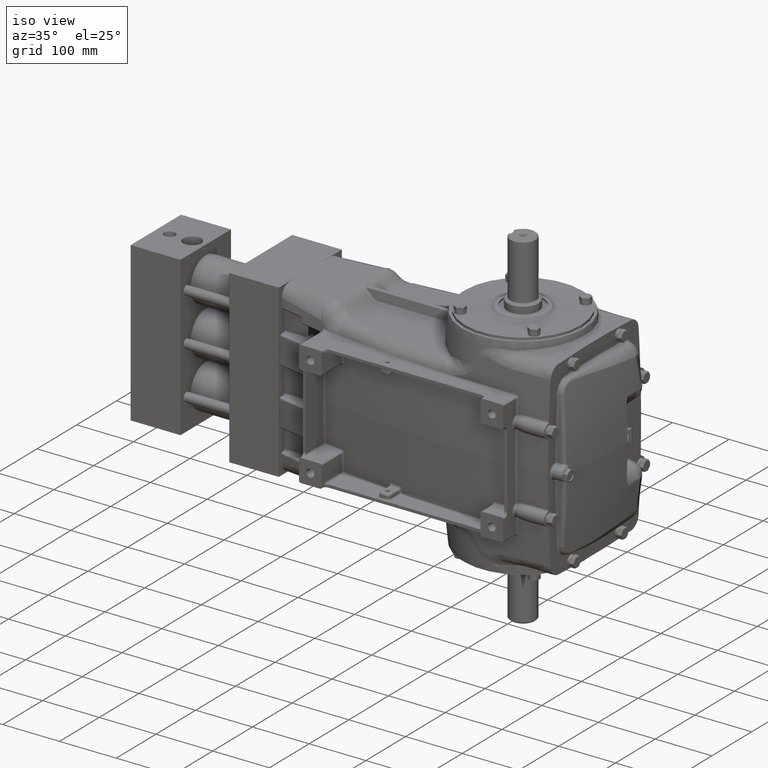
[diagram: clean part render]
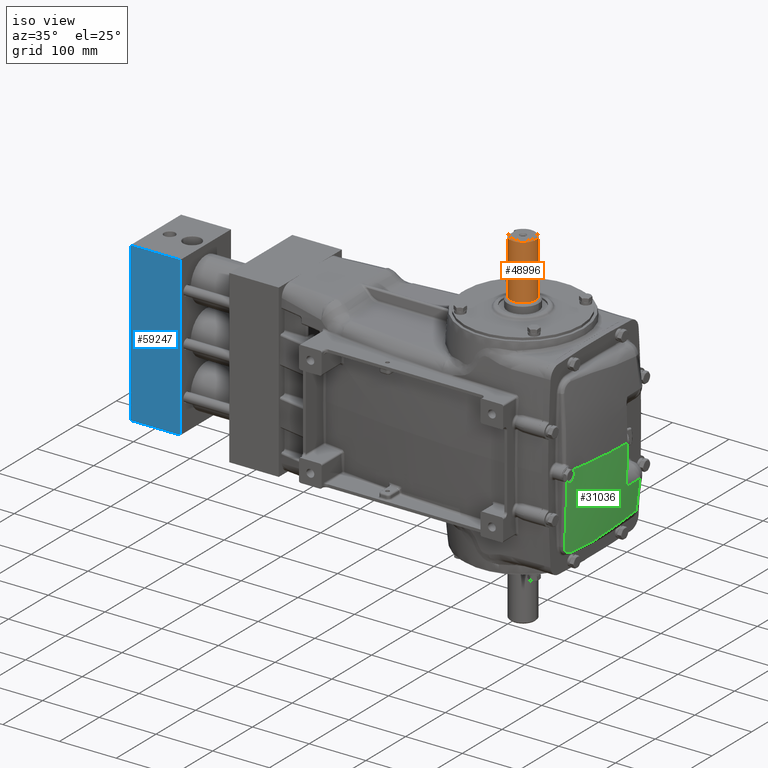
[diagram: same view with three faces highlighted in distinct colors, each labeled with its STEP entity id]
A machine part, iso view with three faces highlighted in distinct colors.
Their STEP definitions:

[orange] entity #48996 — the highlighted cylindrical surface (edge-blend (fillet) strip) has radius 22.5 mm, axis along (0, -0, -1).
#398 = VERTEX_POINT ( 'NONE', #27193 ) ;
#2600 = EDGE_LOOP ( 'NONE', ( #13059, #55700, #35697, #5553, #50763, #39683, #18586 ) ) ;
#3499 = VERTEX_POINT ( 'NONE', #30040 ) ;
#4419 = CARTESIAN_POINT ( 'NONE',  ( -7.730847990341559672, -8.015041311640707988, 8.206365731159344534 ) ) ;
#4719 = DIRECTION ( 'NONE',  ( -0.000000000000000000, 0.000000000000000000, 1.000000000000000000 ) ) ;
#5385 = CARTESIAN_POINT ( 'NONE',  ( -7.719398597081805313, -7.501432983770997431, 8.346456692913386988 ) ) ;
#5553 = ORIENTED_EDGE ( 'NONE', *, *, #24777, .T. ) ;
#5827 = B_SPLINE_CURVE_WITH_KNOTS ( 'NONE', 3,
 ( #9135, #52462, #51854, #28438, #8829, #47730, #4419, #22745, #61339, #23672, #17997, #38215 ),
 .UNSPECIFIED., .F., .F.,
 ( 4, 2, 2, 2, 2, 4 ),
 ( 0.01101464459030256776, 0.01240759447134734059, 0.01380054435239211168, 0.01519349423343688277, 0.01588996917395929867, 0.01658644411448171457 ),
 .UNSPECIFIED. ) ;
#6829 = AXIS2_PLACEMENT_3D ( 'NONE', #25063, #20304, #19675 ) ;
#8532 = VERTEX_POINT ( 'NONE', #54331 ) ;
#8552 = VERTEX_POINT ( 'NONE', #34728 ) ;
#8829 = CARTESIAN_POINT ( 'NONE',  ( -7.724050143364506127, -8.038083191710612141, 8.256258757307568530 ) ) ;
#8878 = CARTESIAN_POINT ( 'NONE',  ( -7.728332159422860670, -7.530275700836343233, 8.222339887136104863 ) ) ;
#9130 = LINE ( 'NONE', #57206, #52654 ) ;
#9135 = CARTESIAN_POINT ( 'NONE',  ( -7.719398597081805313, -8.052614086133198512, 8.346456692913386988 ) ) ;
#9183 = LINE ( 'NONE', #52817, #34813 ) ;
#9892 = B_SPLINE_CURVE_WITH_KNOTS ( 'NONE', 3,
 ( #23103, #37653, #56960, #38260, #13629, #52206, #8878, #23416, #62000, #57258, #33225, #30032, #35384, #5385 ),
 .UNSPECIFIED., .F., .F.,
 ( 4, 2, 2, 2, 2, 2, 4 ),
 ( 0.02745535854509768836, 0.02815234603431240185, 0.02884933352352711186, 0.03024330850195641046, 0.03163728348038570559, 0.03233427096960035663, 0.03303125845881500072 ),
 .UNSPECIFIED. ) ;
#13059 = ORIENTED_EDGE ( 'NONE', *, *, #41186, .T. ) ;
#13629 = CARTESIAN_POINT ( 'NONE',  ( -7.734912158620463885, -7.554275835954605611, 8.183928310501492831 ) ) ;
#17601 = CARTESIAN_POINT ( 'NONE',  ( -7.742106726044585940, -7.584150326858932090, 8.149606299212605265 ) ) ;
#17997 = CARTESIAN_POINT ( 'NONE',  ( -7.740659428135426623, -7.976384408279046490, 8.155962886990510086 ) ) ;
#18586 = ORIENTED_EDGE ( 'NONE', *, *, #29365, .T. ) ;
#18928 = CARTESIAN_POINT ( 'NONE',  ( -6.877532267147037359, -7.777023534952098416, 12.00787401574803326 ) ) ;
#19675 = DIRECTION ( 'NONE',  ( 1.000000000000000000, 0.000000000000000000, 0.000000000000000000 ) ) ;
#20304 = DIRECTION ( 'NONE',  ( -0.000000000000000000, -0.000000000000000000, -1.000000000000000000 ) ) ;
#21957 = DIRECTION ( 'NONE',  ( 0.000000000000000000, 0.000000000000000000, 1.000000000000000000 ) ) ;
#22463 = FACE_OUTER_BOUND ( 'NONE', #2600, .T. ) ;
#22481 = CIRCLE ( 'NONE', #53760, 0.8858267716535430658 ) ;
#22745 = CARTESIAN_POINT ( 'NONE',  ( -7.734914709565275714, -7.999761488238539719, 8.183914689150565636 ) ) ;
#23103 = CARTESIAN_POINT ( 'NONE',  ( -7.742106726044585940, -7.584150326858932090, 8.149606299212605265 ) ) ;
#23200 = EDGE_CURVE ( 'NONE', #28859, #3499, #5827, .T. ) ;
#23416 = CARTESIAN_POINT ( 'NONE',  ( -7.724046752083233436, -7.515952324109975713, 8.256282982849965535 ) ) ;
#23672 = CARTESIAN_POINT ( 'NONE',  ( -7.739190564947945994, -7.982620724607012441, 8.162710042704894420 ) ) ;
#23689 = DIRECTION ( 'NONE',  ( 0.000000000000000000, -0.000000000000000000, -1.000000000000000000 ) ) ;
#24777 = EDGE_CURVE ( 'NONE', #3499, #398, #22481, .T. ) ;
#25063 = CARTESIAN_POINT ( 'NONE',  ( -6.877532267147037359, -7.777023534952098416, 11.92913385826771666 ) ) ;
#27193 = CARTESIAN_POINT ( 'NONE',  ( -5.991705495493493849, -7.777023534952098416, 8.149606299212599936 ) ) ;
#28438 = CARTESIAN_POINT ( 'NONE',  ( -7.722348836362428415, -8.043460466089754846, 8.273683745780198606 ) ) ;
#28445 = CARTESIAN_POINT ( 'NONE',  ( -6.877532267147037359, -7.777023534952098416, 8.149606299212599936 ) ) ;
#28770 = VERTEX_POINT ( 'NONE', #17601 ) ;
#28859 = VERTEX_POINT ( 'NONE', #51764 ) ;
#29365 = EDGE_CURVE ( 'NONE', #8532, #8552, #9130, .T. ) ;
#30032 = CARTESIAN_POINT ( 'NONE',  ( -7.719552048329124894, -7.501900459743061411, 8.327950088391023797 ) ) ;
#30040 = CARTESIAN_POINT ( 'NONE',  ( -7.742106726044586829, -7.969896743045259413, 8.149606299212599936 ) ) ;
#32565 = DIRECTION ( 'NONE',  ( 0.000000000000000000, 0.000000000000000000, 1.000000000000000000 ) ) ;
#32707 = CARTESIAN_POINT ( 'NONE',  ( -6.877532267147037359, -7.777023534952098416, 8.149606299212599936 ) ) ;
#33225 = CARTESIAN_POINT ( 'NONE',  ( -7.720155142149333294, -7.503753139670667593, 8.309598966638480633 ) ) ;
#34728 = CARTESIAN_POINT ( 'NONE',  ( -7.719398597081805313, -7.501432983770997431, 11.92913385826771666 ) ) ;
#34813 = VECTOR ( 'NONE', #52508, 39.37007874015748143 ) ;
#35384 = CARTESIAN_POINT ( 'NONE',  ( -7.719398597081803537, -7.501432983770994767, 8.337257260382719082 ) ) ;
#35697 = ORIENTED_EDGE ( 'NONE', *, *, #23200, .T. ) ;
#37653 = CARTESIAN_POINT ( 'NONE',  ( -7.740656834787417395, -7.577651036669691642, 8.155974277074170331 ) ) ;
#38215 = CARTESIAN_POINT ( 'NONE',  ( -7.742106726044586829, -7.969896743045259413, 8.149606299212599936 ) ) ;
#38260 = CARTESIAN_POINT ( 'NONE',  ( -7.736316846996665220, -7.559735153065666680, 8.176695861145301336 ) ) ;
#38736 = AXIS2_PLACEMENT_3D ( 'NONE', #18928, #23689, #47437 ) ;
#39683 = ORIENTED_EDGE ( 'NONE', *, *, #50803, .T. ) ;
#41186 = EDGE_CURVE ( 'NONE', #8552, #44453, #51248, .T. ) ;
#41882 = DIRECTION ( 'NONE',  ( 1.000000000000000000, 0.000000000000000000, 0.000000000000000000 ) ) ;
#42369 = DIRECTION ( 'NONE',  ( 1.000000000000000000, 0.000000000000000000, 0.000000000000000000 ) ) ;
#42379 = CYLINDRICAL_SURFACE ( 'NONE', #38736, 0.8858267716535430658 ) ;
#44453 = VERTEX_POINT ( 'NONE', #54083 ) ;
#47437 = DIRECTION ( 'NONE',  ( -1.000000000000000000, 0.000000000000000000, 0.000000000000000000 ) ) ;
#47730 = CARTESIAN_POINT ( 'NONE',  ( -7.728324490853711204, -8.023797219170777595, 8.222397994098820107 ) ) ;
#48996 = ADVANCED_FACE ( 'NONE', ( #22463 ), #42379, .T. ) ;
#50694 = EDGE_CURVE ( 'NONE', #44453, #28859, #9183, .T. ) ;
#50763 = ORIENTED_EDGE ( 'NONE', *, *, #62504, .T. ) ;
#50803 = EDGE_CURVE ( 'NONE', #28770, #8532, #9892, .T. ) ;
#51248 = CIRCLE ( 'NONE', #6829, 0.8858267716535430658 ) ;
#51764 = CARTESIAN_POINT ( 'NONE',  ( -7.719398597081805313, -8.052614086133198512, 8.346456692913386988 ) ) ;
#51854 = CARTESIAN_POINT ( 'NONE',  ( -7.720018537123156221, -8.050739736147136227, 8.309524575293897541 ) ) ;
#52206 = CARTESIAN_POINT ( 'NONE',  ( -7.730847712717442199, -7.539005037638961682, 8.206368187930596747 ) ) ;
#52462 = CARTESIAN_POINT ( 'NONE',  ( -7.719398597081804425, -8.052614086133196736, 8.328135553292995041 ) ) ;
#52508 = DIRECTION ( 'NONE',  ( 0.000000000000000000, -0.000000000000000000, -1.000000000000000000 ) ) ;
#52654 = VECTOR ( 'NONE', #4719, 39.37007874015748143 ) ;
#52817 = CARTESIAN_POINT ( 'NONE',  ( -7.719398597081805313, -8.052614086133198512, 12.00787401574803326 ) ) ;
#52821 = AXIS2_PLACEMENT_3D ( 'NONE', #32707, #21957, #41882 ) ;
#53760 = AXIS2_PLACEMENT_3D ( 'NONE', #28445, #32565, #42369 ) ;
#54083 = CARTESIAN_POINT ( 'NONE',  ( -7.719398597081805313, -8.052614086133198512, 11.92913385826771666 ) ) ;
#54331 = CARTESIAN_POINT ( 'NONE',  ( -7.719398597081805313, -7.501432983770997431, 8.346456692913386988 ) ) ;
#55700 = ORIENTED_EDGE ( 'NONE', *, *, #50694, .T. ) ;
#55859 = CIRCLE ( 'NONE', #52821, 0.8858267716535430658 ) ;
#56960 = CARTESIAN_POINT ( 'NONE',  ( -7.739186324676335715, -7.571408650681484609, 8.162729992970783499 ) ) ;
#57206 = CARTESIAN_POINT ( 'NONE',  ( -7.719398597081805313, -7.501432983770997431, 12.00787401574803326 ) ) ;
#57258 = CARTESIAN_POINT ( 'NONE',  ( -7.720602517103182016, -7.505131533391538490, 8.300541971259162821 ) ) ;
#61339 = CARTESIAN_POINT ( 'NONE',  ( -7.736320059295528573, -7.994299292044047434, 8.176679541220460479 ) ) ;
#62000 = CARTESIAN_POINT ( 'NONE',  ( -7.722346969066886224, -7.510580785415615246, 8.273714035364346131 ) ) ;
#62504 = EDGE_CURVE ( 'NONE', #398, #28770, #55859, .T. ) ;

[blue] entity #59247 — the highlighted planar face has unit normal (-0, 1, 0).
#3195 = PLANE ( 'NONE',  #50388 ) ;
#3603 = CARTESIAN_POINT ( 'NONE',  ( -32.36231179470608765, -10.27702353495209842, 5.499999999999999112 ) ) ;
#6262 = VECTOR ( 'NONE', #27477, 39.37007874015748143 ) ;
#6706 = ORIENTED_EDGE ( 'NONE', *, *, #25005, .T. ) ;
#11956 = CARTESIAN_POINT ( 'NONE',  ( -28.90231179470609035, -10.27702353495209842, -5.500000000000000888 ) ) ;
#14310 = DIRECTION ( 'NONE',  ( 1.000000000000000000, 0.000000000000000000, 0.000000000000000000 ) ) ;
#17057 = VERTEX_POINT ( 'NONE', #60803 ) ;
#17665 = VERTEX_POINT ( 'NONE', #55276 ) ;
#17690 = DIRECTION ( 'NONE',  ( 1.000000000000000000, 0.000000000000000000, 0.000000000000000000 ) ) ;
#22903 = VECTOR ( 'NONE', #14310, 39.37007874015748143 ) ;
#25005 = EDGE_CURVE ( 'NONE', #17057, #60516, #55282, .T. ) ;
#27134 = DIRECTION ( 'NONE',  ( 0.000000000000000000, 0.000000000000000000, 1.000000000000000000 ) ) ;
#27477 = DIRECTION ( 'NONE',  ( 1.000000000000000000, 0.000000000000000000, 0.000000000000000000 ) ) ;
#28546 = EDGE_CURVE ( 'NONE', #38861, #17057, #46457, .T. ) ;
#28778 = CARTESIAN_POINT ( 'NONE',  ( -32.36231179470608765, -10.27702353495209842, -5.500000000000000888 ) ) ;
#32596 = VECTOR ( 'NONE', #27134, 39.37007874015748143 ) ;
#34883 = VECTOR ( 'NONE', #58188, 39.37007874015748143 ) ;
#36915 = ORIENTED_EDGE ( 'NONE', *, *, #28546, .T. ) ;
#38313 = EDGE_CURVE ( 'NONE', #38861, #17665, #48073, .T. ) ;
#38861 = VERTEX_POINT ( 'NONE', #58352 ) ;
#39670 = EDGE_LOOP ( 'NONE', ( #6706, #53650, #55955, #36915 ) ) ;
#40831 = CARTESIAN_POINT ( 'NONE',  ( -28.90231179470609035, -10.27702353495209842, 5.499999999999999112 ) ) ;
#46457 = LINE ( 'NONE', #60993, #6262 ) ;
#46498 = FACE_OUTER_BOUND ( 'NONE', #39670, .T. ) ;
#48073 = LINE ( 'NONE', #28778, #34883 ) ;
#50388 = AXIS2_PLACEMENT_3D ( 'NONE', #56604, #61033, #17690 ) ;
#53650 = ORIENTED_EDGE ( 'NONE', *, *, #55801, .F. ) ;
#55276 = CARTESIAN_POINT ( 'NONE',  ( -32.36231179470608765, -10.27702353495209842, 5.499999999999999112 ) ) ;
#55282 = LINE ( 'NONE', #11956, #32596 ) ;
#55801 = EDGE_CURVE ( 'NONE', #17665, #60516, #57319, .T. ) ;
#55955 = ORIENTED_EDGE ( 'NONE', *, *, #38313, .F. ) ;
#56604 = CARTESIAN_POINT ( 'NONE',  ( -32.36231179470608765, -10.27702353495209842, -5.500000000000000888 ) ) ;
#57319 = LINE ( 'NONE', #3603, #22903 ) ;
#58188 = DIRECTION ( 'NONE',  ( 0.000000000000000000, 0.000000000000000000, 1.000000000000000000 ) ) ;
#58352 = CARTESIAN_POINT ( 'NONE',  ( -32.36231179470608765, -10.27702353495209842, -5.500000000000000888 ) ) ;
#59247 = ADVANCED_FACE ( 'NONE', ( #46498 ), #3195, .F. ) ;
#60516 = VERTEX_POINT ( 'NONE', #40831 ) ;
#60803 = CARTESIAN_POINT ( 'NONE',  ( -28.90231179470609035, -10.27702353495209842, -5.500000000000000888 ) ) ;
#60993 = CARTESIAN_POINT ( 'NONE',  ( -32.36231179470608765, -10.27702353495209842, -5.500000000000000888 ) ) ;
#61033 = DIRECTION ( 'NONE',  ( -0.000000000000000000, 1.000000000000000000, 0.000000000000000000 ) ) ;

[green] entity #31036 — the highlighted toroidal blend (fillet) surface has major radius 300 mm and minor (blend) radius 700 mm.
#326 = VERTEX_POINT ( 'NONE', #27504 ) ;
#339 = CARTESIAN_POINT ( 'NONE',  ( -1.239549991746208280, -11.19089365471486097, -0.2297784026368260013 ) ) ;
#479 = DIRECTION ( 'NONE',  ( 1.000000000000000000, 0.000000000000000000, 0.000000000000000000 ) ) ;
#792 = CARTESIAN_POINT ( 'NONE',  ( -0.7374598438591535299, -6.194793563650641488, -3.376538103779295109E-33 ) ) ;
#872 = CARTESIAN_POINT ( 'NONE',  ( -0.8372331752602636401, -6.075934739532610429, -2.812148308104203576 ) ) ;
#968 = CARTESIAN_POINT ( 'NONE',  ( -1.553548811109386252, -11.27314002713904806, -4.807788219395104257 ) ) ;
#1194 = CARTESIAN_POINT ( 'NONE',  ( -1.313602737272024923, -9.365863670141120423, -5.334166308895315289 ) ) ;
#1374 = VERTEX_POINT ( 'NONE', #9789 ) ;
#1495 = CARTESIAN_POINT ( 'NONE',  ( -1.162758179521760082, -8.063842303444168635, -5.198477331368215992 ) ) ;
#1698 = ORIENTED_EDGE ( 'NONE', *, *, #33203, .T. ) ;
#1957 = ORIENTED_EDGE ( 'NONE', *, *, #56041, .T. ) ;
#2120 = CARTESIAN_POINT ( 'NONE',  ( -1.300013917008597364, -9.264484519502829585, -5.326574133655284093 ) ) ;
#2433 = CARTESIAN_POINT ( 'NONE',  ( -1.209764074036724812, -8.522181784061343635, -5.254347282928313767 ) ) ;
#3809 = CARTESIAN_POINT ( 'NONE',  ( -1.564478072190621738, -11.03825976031536982, -5.241086578144339647 ) ) ;
#3991 = CARTESIAN_POINT ( 'NONE',  ( -1.044320564721674449, -5.316760959051895163, -4.864105943301918700 ) ) ;
#4106 = B_SPLINE_CURVE_WITH_KNOTS ( 'NONE', 3,
 ( #9513, #38286, #58839, #28806, #15509, #48417 ),
 .UNSPECIFIED., .F., .F.,
 ( 4, 2, 4 ),
 ( 0.01236748594910167323, 0.06737170396115277349, 0.1223759219732038633 ),
 .UNSPECIFIED. ) ;
#4115 = CARTESIAN_POINT ( 'NONE',  ( -1.571242836738718340, -11.18458716852035195, -5.081512726748599107 ) ) ;
#4420 = CARTESIAN_POINT ( 'NONE',  ( -0.8372331752602636401, -6.075934739532610429, -2.812148308104203576 ) ) ;
#4900 = CARTESIAN_POINT ( 'NONE',  ( -0.7437229183762256168, -6.192758567381069668, -0.8119747735864563110 ) ) ;
#5057 = CARTESIAN_POINT ( 'NONE',  ( -1.229270595723360948, -11.14106457318714227, 3.865702057846360924E-15 ) ) ;
#5095 = B_SPLINE_CURVE_WITH_KNOTS ( 'NONE', 3,
 ( #20611, #47633, #57428, #34561, #10839, #14972, #53849, #10530, #29513, #15881 ),
 .UNSPECIFIED., .F., .F.,
 ( 4, 2, 2, 2, 4 ),
 ( 0.02146166848574502031, 0.02380266222305022980, 0.02614365596035544276, 0.02848464969766065225, 0.03082564343496586173 ),
 .UNSPECIFIED. ) ;
#5919 = CARTESIAN_POINT ( 'NONE',  ( -1.298220422752950576, -9.250960343425136401, -5.325518707966256038 ) ) ;
#6229 = CARTESIAN_POINT ( 'NONE',  ( -1.238928737523074419, -8.778489302564491226, -5.282356873758460303 ) ) ;
#6848 = CARTESIAN_POINT ( 'NONE',  ( -1.246312482781278375, -8.840454098437763975, -5.288675306705785673 ) ) ;
#7164 = CARTESIAN_POINT ( 'NONE',  ( -1.138822863054163692, -7.797248931487713364, -5.163434554022858336 ) ) ;
#7396 = CIRCLE ( 'NONE', #51812, 27.55905511811022990 ) ;
#7474 = CARTESIAN_POINT ( 'NONE',  ( -1.054595549207635985, -6.363717331195389626, -4.971155850280974953 ) ) ;
#7493 = ORIENTED_EDGE ( 'NONE', *, *, #47980, .T. ) ;
#7576 = VERTEX_POINT ( 'NONE', #43528 ) ;
#8402 = CARTESIAN_POINT ( 'NONE',  ( -1.093362904261915514, -7.186763641587701201, -5.080195478884207638 ) ) ;
#9298 = B_SPLINE_CURVE_WITH_KNOTS ( 'NONE', 3,
 ( #29773, #34521, #20271, #43391 ),
 .UNSPECIFIED., .F., .F.,
 ( 4, 4 ),
 ( 0.000000000000000000, 0.05182488106915178472 ),
 .UNSPECIFIED. ) ;
#9449 = CARTESIAN_POINT ( 'NONE',  ( -1.568321439975793874, -11.23441811615799502, -4.984472006344477180 ) ) ;
#9513 = CARTESIAN_POINT ( 'NONE',  ( -1.290659113558912940, -11.43655909769185897, -0.4877294735864423081 ) ) ;
#9789 = CARTESIAN_POINT ( 'NONE',  ( -1.056191481285859934, -4.877367484191863944, -4.840242302779922845 ) ) ;
#9927 = CARTESIAN_POINT ( 'NONE',  ( -0.8625420740671588815, -4.766474164009145476, -2.812132526087493645 ) ) ;
#10530 = CARTESIAN_POINT ( 'NONE',  ( -1.279705527520015318, -11.38423629869141251, -0.4577162347525909336 ) ) ;
#10839 = CARTESIAN_POINT ( 'NONE',  ( -1.256253033215209536, -11.27160086187627641, -0.3576042505593980958 ) ) ;
#10959 = CARTESIAN_POINT ( 'NONE',  ( -1.444658153869460726, -10.25571274051980808, -5.371031495846720460 ) ) ;
#11074 = EDGE_CURVE ( 'NONE', #59365, #38257, #4106, .T. ) ;
#11270 = CARTESIAN_POINT ( 'NONE',  ( -1.143783696655722437, -7.854750483413231343, -5.171109672741192043 ) ) ;
#11578 = CARTESIAN_POINT ( 'NONE',  ( -1.482394138368559489, -10.48608055380844384, -5.369261606014289256 ) ) ;
#11899 = CARTESIAN_POINT ( 'NONE',  ( -1.216051548401235305, -8.578968049057365874, -5.260779149100234697 ) ) ;
#12044 = B_SPLINE_CURVE_WITH_KNOTS ( 'NONE', 3,
 ( #9927, #40247, #14999, #19710 ),
 .UNSPECIFIED., .F., .F.,
 ( 4, 4 ),
 ( 0.000000000000000000, 0.03326646946209800559 ),
 .UNSPECIFIED. ) ;
#12218 = CARTESIAN_POINT ( 'NONE',  ( -1.153648331773578173, -7.965255249904779511, -5.185673076906480716 ) ) ;
#12535 = CARTESIAN_POINT ( 'NONE',  ( -1.055418966499295896, -6.390281460580708561, -4.974424776607643928 ) ) ;
#13770 = CARTESIAN_POINT ( 'NONE',  ( -1.048945088627819766, -5.089176727989618065, -4.848991911919142694 ) ) ;
#13900 = CARTESIAN_POINT ( 'NONE',  ( -1.555566810049102466, -11.27189060639147655, -4.825956977166343087 ) ) ;
#13901 = CARTESIAN_POINT ( 'NONE',  ( -0.8351223092120459990, -6.088339219926455215, -2.781892614608941550 ) ) ;
#14972 = CARTESIAN_POINT ( 'NONE',  ( -1.265000881451562753, -11.31370355546100548, -0.4017209433856092637 ) ) ;
#14999 = CARTESIAN_POINT ( 'NONE',  ( -0.8352687965442249229, -5.639263185393296851, -2.812149532266563501 ) ) ;
#15307 = CARTESIAN_POINT ( 'NONE',  ( -40.10647146010700226, -5.952271988252819668, 0.000000000000000000 ) ) ;
#15509 = CARTESIAN_POINT ( 'NONE',  ( -1.473881770483631781, -11.32246495565934730, -4.090517692144737261 ) ) ;
#15744 = CARTESIAN_POINT ( 'NONE',  ( -1.290659113558912940, -11.43655909769185897, -0.4877294735864423081 ) ) ;
#15881 = CARTESIAN_POINT ( 'NONE',  ( -1.290659113558912940, -11.43655909769185897, -0.4877294735864423081 ) ) ;
#16005 = CARTESIAN_POINT ( 'NONE',  ( -1.212875983778185063, -8.550387928906197033, -5.257555849138636717 ) ) ;
#16319 = CARTESIAN_POINT ( 'NONE',  ( -1.198577036284782960, -8.420411178038166966, -5.242719921505767822 ) ) ;
#16624 = CARTESIAN_POINT ( 'NONE',  ( -1.519731583493590277, -10.70447521817609804, -5.360178882565543645 ) ) ;
#16941 = CARTESIAN_POINT ( 'NONE',  ( -1.128150560995435647, -7.672129082949544099, -5.146668262404694438 ) ) ;
#17500 = EDGE_CURVE ( 'NONE', #26567, #33438, #25146, .T. ) ;
#17568 = CARTESIAN_POINT ( 'NONE',  ( -1.101311299772697261, -7.308139132119914727, -5.096980045203364895 ) ) ;
#17684 = CARTESIAN_POINT ( 'NONE',  ( -1.541896261536149781, -10.84561409155366540, -5.337421209621138196 ) ) ;
#18211 = CARTESIAN_POINT ( 'NONE',  ( -1.229270595723360948, -11.14106457318714227, 3.865702057846360924E-15 ) ) ;
#18295 = CARTESIAN_POINT ( 'NONE',  ( -1.539407222528651698, -10.82832736550711061, -5.342144275654240992 ) ) ;
#18296 = CARTESIAN_POINT ( 'NONE',  ( -0.8268244958986382676, -6.131954457684191340, -2.658460200148968777 ) ) ;
#18481 = CARTESIAN_POINT ( 'NONE',  ( -1.078871573567592668, -6.944082895167395186, -5.046335931002459141 ) ) ;
#18597 = CARTESIAN_POINT ( 'NONE',  ( -1.555184443548970563, -10.94694671594674062, -5.298649251694553364 ) ) ;
#18772 = EDGE_CURVE ( 'NONE', #54931, #33438, #31073, .T. ) ;
#18911 = CARTESIAN_POINT ( 'NONE',  ( -1.560801143742031494, -11.26397189553317624, -4.879996799677583930 ) ) ;
#18959 = B_SPLINE_CURVE_WITH_KNOTS ( 'NONE', 3,
 ( #16624, #11578, #10959, #30855, #54280, #34985, #45738, #1194, #59343, #50165, #2120, #21050, #30238, #31495, #5919, #49554, #50477, #59650, #6848, #6229, #20430, #40658, #11899, #16005, #25506, #44807, #21677, #39716, #21367, #2433, #25189, #16319, #36236, #59964, #1495, #12218, #54582, #11270, #35607, #35912, #55223, #7164, #40967, #26455, #60280, #16941, #44490, #17568, #8402, #52031, #18481, #31804, #47296, #27391, #12535, #7474, #41607, #32432, #41288, #51730, #37485, #26762, #56793, #22937, #3991, #13770, #46685 ),
 .UNSPECIFIED., .F., .F.,
 ( 4, 2, 2, 1, 1, 1, 1, 1, 1, 1, 2, 2, 2, 2, 1, 1, 1, 1, 1, 1, 1, 2, 2, 2, 2, 1, 1, 1, 1, 1, 1, 2, 2, 1, 2, 2, 1, 1, 1, 1, 1, 1, 1, 1, 2, 2, 2, 4 ),
 ( 0.000000000000000000, 0.1249999999993358091, 0.1874999999990037136, 0.2187499999988379018, 0.2343749999987550237, 0.2421874999987138344, 0.2460937499986932397, 0.2480468749986829702, 0.2490234374986781130, 0.2495117187486754207, 0.2497558593736743382, 0.2499999999986732280, 0.3124999999984882648, 0.3437499999983958388, 0.3593749999983497090, 0.3671874999983263388, 0.3710937499983149035, 0.3730468749983089638, 0.3740234374983059662, 0.3745117187483042454, 0.3747558593733035792, 0.3748779296858035237, 0.3749999999983034127, 0.4374999999984450216, 0.4687499999985158539, 0.4843749999985512700, 0.4921874999985687005, 0.4960937499985771937, 0.4980468749985814680, 0.4990234374985837995, 0.4995117187485850763, 0.4997558593735858534, 0.4999999999985866861, 0.5624999999987793098, 0.5937499999988755661, 0.6249999999989718225, 0.6874999999991637800, 0.7187499999992598143, 0.7343749999993077759, 0.7421874999993315347, 0.7460937499993437472, 0.7480468749993500754, 0.7490234374993532951, 0.7495117187493548494, 0.7497558593743557376, 0.7499999999993565147, 0.8749999999996781463, 1.000000000000000000 ),
 .UNSPECIFIED. ) ;
#19710 = CARTESIAN_POINT ( 'NONE',  ( -0.8372331752602636401, -6.075934739532610429, -2.812148308104203576 ) ) ;
#20271 = CARTESIAN_POINT ( 'NONE',  ( -0.9099647685575180667, -4.793707866133954276, -3.490336519798898696 ) ) ;
#20430 = CARTESIAN_POINT ( 'NONE',  ( -1.227914530523909420, -8.683621800718711370, -5.272281251762199972 ) ) ;
#20611 = CARTESIAN_POINT ( 'NONE',  ( -1.239549991746208280, -11.19089365471486097, -0.2297784026368260013 ) ) ;
#21050 = CARTESIAN_POINT ( 'NONE',  ( -1.299047918286505565, -9.257204477328892622, -5.326007232351605225 ) ) ;
#21288 = CARTESIAN_POINT ( 'NONE',  ( -0.8125850666106061437, -6.170383899094809443, -2.434261824659195828 ) ) ;
#21367 = CARTESIAN_POINT ( 'NONE',  ( -1.209820591514240373, -8.522695818365065179, -5.254405996074729579 ) ) ;
#21677 = CARTESIAN_POINT ( 'NONE',  ( -1.210103211101704268, -8.525265383865184177, -5.254699371332351987 ) ) ;
#21743 = EDGE_CURVE ( 'NONE', #62281, #45991, #31578, .T. ) ;
#22937 = CARTESIAN_POINT ( 'NONE',  ( -1.042676546646773561, -5.803401720210779935, -4.906771388503367248 ) ) ;
#23058 = CARTESIAN_POINT ( 'NONE',  ( -1.566347472860442291, -11.24660392817786025, -4.950513585213520251 ) ) ;
#23142 = EDGE_CURVE ( 'NONE', #38257, #7576, #23163, .T. ) ;
#23163 = B_SPLINE_CURVE_WITH_KNOTS ( 'NONE', 3,
 ( #32556, #13900, #56600, #18911, #56297, #23058, #9449, #42977, #32860, #4115, #42049, #27517, #61646, #47107, #52774, #3809, #46811, #37899, #18597, #62258, #47417, #17684, #18295, #48031, #61953, #37299 ),
 .UNSPECIFIED., .F., .F.,
 ( 4, 2, 2, 2, 2, 2, 2, 2, 2, 2, 2, 2, 4 ),
 ( 0.000000000000000000, 0.001393468656929963256, 0.002786937313859926511, 0.005573874627719812257, 0.006967343284649719568, 0.008360811941579627746, 0.01114774925543927583, 0.01254121791236904176, 0.01393468656929880423, 0.01672162388315833262, 0.01811509254008808467, 0.01950856119701783326, 0.02229549851087730961 ),
 .UNSPECIFIED. ) ;
#23513 = ORIENTED_EDGE ( 'NONE', *, *, #61503, .T. ) ;
#24778 = CARTESIAN_POINT ( 'NONE',  ( -0.8125850666106061437, -6.170383899094809443, -2.434261824659195828 ) ) ;
#25146 = B_SPLINE_CURVE_WITH_KNOTS ( 'NONE', 3,
 ( #4420, #13901, #32863, #47419, #18296, #33800, #57515, #52160, #42053, #62260 ),
 .UNSPECIFIED., .F., .F.,
 ( 4, 2, 2, 2, 4 ),
 ( -2.857996328438178080E-05, 0.002468332397666001422, 0.004965244758616384722, 0.007462157119566768457, 0.009959069480517151324 ),
 .UNSPECIFIED. ) ;
#25189 = CARTESIAN_POINT ( 'NONE',  ( -1.209729298983849288, -8.521865457737622052, -5.254311146328294768 ) ) ;
#25506 = CARTESIAN_POINT ( 'NONE',  ( -1.211290858886710176, -8.536045325349617130, -5.255927702950783598 ) ) ;
#26455 = CARTESIAN_POINT ( 'NONE',  ( -1.138587042066043997, -7.794486595092190662, -5.163064503765199653 ) ) ;
#26567 = VERTEX_POINT ( 'NONE', #872 ) ;
#26762 = CARTESIAN_POINT ( 'NONE',  ( -1.053812229919711907, -6.337688891666042323, -4.967966940072961357 ) ) ;
#27126 = EDGE_LOOP ( 'NONE', ( #34845, #7493, #34641, #23513, #59044, #35494, #1698, #1957, #54093, #54205 ) ) ;
#27391 = CARTESIAN_POINT ( 'NONE',  ( -1.057138411284552104, -6.443407199174843392, -4.981005914649505151 ) ) ;
#27504 = CARTESIAN_POINT ( 'NONE',  ( -0.8625420740671588815, -4.766474164009145476, -2.812132526087493645 ) ) ;
#27517 = CARTESIAN_POINT ( 'NONE',  ( -1.571065766423013654, -11.14314967961352210, -5.140980375108049394 ) ) ;
#28765 = CARTESIAN_POINT ( 'NONE',  ( -1.230999932499291960, -11.14945415337018098, -0.09848937057379755777 ) ) ;
#28806 = CARTESIAN_POINT ( 'NONE',  ( -1.412245602483326978, -11.36079691508933642, -3.371873501537796525 ) ) ;
#28918 = CARTESIAN_POINT ( 'NONE',  ( -0.7374598438591547511, -6.194793563650639712, -0.4060737577237384377 ) ) ;
#29513 = CARTESIAN_POINT ( 'NONE',  ( -1.285020267492596568, -11.40965757849815887, -0.4737448369408722160 ) ) ;
#29773 = CARTESIAN_POINT ( 'NONE',  ( -1.056191481285859934, -4.877367484191863944, -4.840242302779922845 ) ) ;
#29791 = CARTESIAN_POINT ( 'NONE',  ( -28.29544783805975783, -5.952271988252819668, 0.000000000000000000 ) ) ;
#30238 = CARTESIAN_POINT ( 'NONE',  ( -1.298565156337456061, -9.253562522471201035, -5.325722550518118936 ) ) ;
#30447 = FACE_OUTER_BOUND ( 'NONE', #27126, .T. ) ;
#30855 = CARTESIAN_POINT ( 'NONE',  ( -1.388776277567401074, -9.892099222711603801, -5.362439750434919716 ) ) ;
#31034 = DIRECTION ( 'NONE',  ( 0.000000000000000000, 0.000000000000000000, -1.000000000000000000 ) ) ;
#31036 = ADVANCED_FACE ( 'NONE', ( #30447 ), #39578, .T. ) ;
#31073 = B_SPLINE_CURVE_WITH_KNOTS ( 'NONE', 3,
 ( #792, #28918, #4900, #34281, #48526, #24778 ),
 .UNSPECIFIED., .F., .F.,
 ( 4, 2, 4 ),
 ( 1.999312279279940984E-07, 0.03093238034559044405, 0.06186456075995296067 ),
 .UNSPECIFIED. ) ;
#31495 = CARTESIAN_POINT ( 'NONE',  ( -1.298358309375178710, -9.252001270294398338, -5.325600280168608869 ) ) ;
#31578 = B_SPLINE_CURVE_WITH_KNOTS ( 'NONE', 3,
 ( #5057, #43010, #33209, #43317, #28765, #34447, #48063, #52494 ),
 .UNSPECIFIED., .F., .F.,
 ( 4, 2, 2, 4 ),
 ( 0.006022522450713312797, 0.007529121385804939809, 0.009035720320896566821, 0.01204891819107982084 ),
 .UNSPECIFIED. ) ;
#31804 = CARTESIAN_POINT ( 'NONE',  ( -1.069488742895365885, -6.762084546008986230, -5.021702686355932421 ) ) ;
#32432 = CARTESIAN_POINT ( 'NONE',  ( -1.053993868587648652, -6.343793695607145899, -4.968713628097813917 ) ) ;
#32556 = CARTESIAN_POINT ( 'NONE',  ( -1.553548811109386252, -11.27314002713904806, -4.807788219395104257 ) ) ;
#32860 = CARTESIAN_POINT ( 'NONE',  ( -1.570689666419578190, -11.20303311522727086, -5.049886546279415356 ) ) ;
#32863 = CARTESIAN_POINT ( 'NONE',  ( -0.8330347923026889534, -6.100207147449855150, -2.751387458887342152 ) ) ;
#33203 = EDGE_CURVE ( 'NONE', #7576, #1374, #18959, .T. ) ;
#33209 = CARTESIAN_POINT ( 'NONE',  ( -1.229483371388978563, -11.14209699727395986, -0.03935245566530796296 ) ) ;
#33438 = VERTEX_POINT ( 'NONE', #21288 ) ;
#33800 = CARTESIAN_POINT ( 'NONE',  ( -0.8227298756452454676, -6.148976059683232798, -2.595490492864124477 ) ) ;
#34281 = CARTESIAN_POINT ( 'NONE',  ( -0.7687638313424293157, -6.184622281546694467, -1.623431635602357925 ) ) ;
#34447 = CARTESIAN_POINT ( 'NONE',  ( -1.233579403224732474, -11.16196371783728836, -0.1563399999800972606 ) ) ;
#34521 = CARTESIAN_POINT ( 'NONE',  ( -0.9745006695503225513, -4.830719953914356601, -4.166371834084402259 ) ) ;
#34561 = CARTESIAN_POINT ( 'NONE',  ( -1.252303080461435458, -11.25254961317880031, -0.3339704265119712301 ) ) ;
#34641 = ORIENTED_EDGE ( 'NONE', *, *, #21743, .T. ) ;
#34845 = ORIENTED_EDGE ( 'NONE', *, *, #18772, .F. ) ;
#34985 = CARTESIAN_POINT ( 'NONE',  ( -1.342878500918765594, -9.577040738484017268, -5.347746349722943826 ) ) ;
#35189 = DIRECTION ( 'NONE',  ( 0.000000000000000000, -1.000000000000000000, 0.000000000000000000 ) ) ;
#35494 = ORIENTED_EDGE ( 'NONE', *, *, #23142, .T. ) ;
#35607 = CARTESIAN_POINT ( 'NONE',  ( -1.141135971373387292, -7.824203668402150313, -5.167039075899903189 ) ) ;
#35912 = CARTESIAN_POINT ( 'NONE',  ( -1.139813745887563012, -7.808826822460285477, -5.164984239179559289 ) ) ;
#36236 = CARTESIAN_POINT ( 'NONE',  ( -1.186826277978528354, -8.309107796381336897, -5.229358085738218698 ) ) ;
#37299 = CARTESIAN_POINT ( 'NONE',  ( -1.519731583493590277, -10.70447521817609804, -5.360178882565543645 ) ) ;
#37463 = CARTESIAN_POINT ( 'NONE',  ( -0.7374598438591535299, -6.194793563650641488, -3.376538103779295109E-33 ) ) ;
#37485 = CARTESIAN_POINT ( 'NONE',  ( -1.053824458244404072, -6.338101144624906702, -4.968017340805081616 ) ) ;
#37899 = CARTESIAN_POINT ( 'NONE',  ( -1.558751547647863056, -10.97861235655337175, -5.281568287909771620 ) ) ;
#38257 = VERTEX_POINT ( 'NONE', #968 ) ;
#38286 = CARTESIAN_POINT ( 'NONE',  ( -1.298719047164479390, -11.43152875567663074, -1.210477209355807826 ) ) ;
#39578 = TOROIDAL_SURFACE ( 'NONE', #51758, 11.81102362204724265, 27.55905511811023700 ) ;
#39716 = CARTESIAN_POINT ( 'NONE',  ( -1.209905370849988726, -8.523466811173589619, -5.254494047360801723 ) ) ;
#40247 = CARTESIAN_POINT ( 'NONE',  ( -0.8437043333573092108, -5.202776313339746217, -2.812144280299276655 ) ) ;
#40658 = CARTESIAN_POINT ( 'NONE',  ( -1.222422806363399284, -8.635707978322612277, -5.267093945986094816 ) ) ;
#40967 = CARTESIAN_POINT ( 'NONE',  ( -1.138681367036699532, -7.795591714377478887, -5.163212558826809406 ) ) ;
#41288 = CARTESIAN_POINT ( 'NONE',  ( -1.053894911966130943, -6.340473045327524204, -4.968307380608079526 ) ) ;
#41607 = CARTESIAN_POINT ( 'NONE',  ( -1.054192916232874255, -6.350434958274948194, -4.969526799863152711 ) ) ;
#42049 = CARTESIAN_POINT ( 'NONE',  ( -1.571333102334020682, -11.17470540634980480, -5.096777293988908220 ) ) ;
#42053 = CARTESIAN_POINT ( 'NONE',  ( -0.8146177393761375729, -6.169723443677310293, -2.467157795062527192 ) ) ;
#42977 = CARTESIAN_POINT ( 'NONE',  ( -1.570229646264599266, -11.21147729603317345, -5.033724942537765479 ) ) ;
#43010 = CARTESIAN_POINT ( 'NONE',  ( -1.229270595723362725, -11.14106457318714583, -0.01966230270327780708 ) ) ;
#43317 = CARTESIAN_POINT ( 'NONE',  ( -1.230347074455755196, -11.14628710889161667, -0.07879009264105997501 ) ) ;
#43391 = CARTESIAN_POINT ( 'NONE',  ( -0.8625420740671588815, -4.766474164009145476, -2.812132526087493645 ) ) ;
#43528 = CARTESIAN_POINT ( 'NONE',  ( -1.519731583493590277, -10.70447521817609804, -5.360178882565543645 ) ) ;
#44490 = CARTESIAN_POINT ( 'NONE',  ( -1.113832934664904517, -7.490177454746226537, -5.122024489410215153 ) ) ;
#44807 = CARTESIAN_POINT ( 'NONE',  ( -1.210498978533528502, -8.528860887143641989, -5.255109503198851506 ) ) ;
#45738 = CARTESIAN_POINT ( 'NONE',  ( -1.329273578279476897, -9.480488070346046570, -5.342057100842867889 ) ) ;
#45991 = VERTEX_POINT ( 'NONE', #339 ) ;
#46685 = CARTESIAN_POINT ( 'NONE',  ( -1.056191481285859934, -4.877367484191863944, -4.840242302779922845 ) ) ;
#46811 = CARTESIAN_POINT ( 'NONE',  ( -1.563164393768117888, -11.02365657407620958, -5.251736528445275276 ) ) ;
#47107 = CARTESIAN_POINT ( 'NONE',  ( -1.567768230827595088, -11.08039830547452453, -5.206194522468571506 ) ) ;
#47296 = CARTESIAN_POINT ( 'NONE',  ( -1.060867780242685132, -6.549648160909839589, -4.994341197797926846 ) ) ;
#47417 = CARTESIAN_POINT ( 'NONE',  ( -1.546631380488431073, -10.87988231212552392, -5.326361990746772967 ) ) ;
#47419 = CARTESIAN_POINT ( 'NONE',  ( -0.8288887710040009349, -6.121997226479966692, -2.689715663435855664 ) ) ;
#47633 = CARTESIAN_POINT ( 'NONE',  ( -1.242193382291643777, -11.20369574702595372, -0.2576272840699544431 ) ) ;
#47980 = EDGE_CURVE ( 'NONE', #54931, #62281, #7396, .T. ) ;
#48031 = CARTESIAN_POINT ( 'NONE',  ( -1.531584942927971982, -10.77601911447200145, -5.353946565448757688 ) ) ;
#48063 = CARTESIAN_POINT ( 'NONE',  ( -1.236125371165713416, -11.17430802045147686, -0.1936990375712535351 ) ) ;
#48417 = CARTESIAN_POINT ( 'NONE',  ( -1.553548811109386252, -11.27314002713904806, -4.807788219395104257 ) ) ;
#48526 = CARTESIAN_POINT ( 'NONE',  ( -0.7875477499188904273, -6.178519016428768218, -2.029067814688757743 ) ) ;
#49094 = DIRECTION ( 'NONE',  ( -1.000000000000000000, 0.000000000000000000, 0.000000000000000000 ) ) ;
#49554 = CARTESIAN_POINT ( 'NONE',  ( -1.298140048298038307, -9.250353466163938165, -5.325471115806771571 ) ) ;
#50165 = CARTESIAN_POINT ( 'NONE',  ( -1.301947803162665007, -9.279029133778756488, -5.327698088664721610 ) ) ;
#50477 = CARTESIAN_POINT ( 'NONE',  ( -1.283363799763292512, -9.138767218213137866, -5.316715640258877329 ) ) ;
#51730 = CARTESIAN_POINT ( 'NONE',  ( -1.053852623527551380, -6.339049905444985811, -4.968133347057219318 ) ) ;
#51758 = AXIS2_PLACEMENT_3D ( 'NONE', #15307, #35189, #479 ) ;
#51812 = AXIS2_PLACEMENT_3D ( 'NONE', #29791, #31034, #49094 ) ;
#52031 = CARTESIAN_POINT ( 'NONE',  ( -1.089584726200445441, -7.126005401591855914, -5.071750371976680327 ) ) ;
#52160 = CARTESIAN_POINT ( 'NONE',  ( -0.8166413305441218018, -6.166425645272882505, -2.499580588558069749 ) ) ;
#52494 = CARTESIAN_POINT ( 'NONE',  ( -1.239549991746208280, -11.19089365471486097, -0.2297784026368260013 ) ) ;
#52774 = CARTESIAN_POINT ( 'NONE',  ( -1.566780068247100255, -11.06661907703384351, -5.218333242062026756 ) ) ;
#53849 = CARTESIAN_POINT ( 'NONE',  ( -1.269695849187235659, -11.33625944404720798, -0.4217040767749667407 ) ) ;
#54093 = ORIENTED_EDGE ( 'NONE', *, *, #59834, .T. ) ;
#54205 = ORIENTED_EDGE ( 'NONE', *, *, #17500, .T. ) ;
#54280 = CARTESIAN_POINT ( 'NONE',  ( -1.370271179551982632, -9.767884877871768623, -5.357701259027895624 ) ) ;
#54582 = CARTESIAN_POINT ( 'NONE',  ( -1.149089871798861573, -7.915016683425689870, -5.179094886603560433 ) ) ;
#54931 = VERTEX_POINT ( 'NONE', #37463 ) ;
#55223 = CARTESIAN_POINT ( 'NONE',  ( -1.139153079771571209, -7.801112538705539556, -5.163951931119644456 ) ) ;
#56041 = EDGE_CURVE ( 'NONE', #1374, #326, #9298, .T. ) ;
#56297 = CARTESIAN_POINT ( 'NONE',  ( -1.562326050577809156, -11.26021096889891382, -4.897888106521786966 ) ) ;
#56600 = CARTESIAN_POINT ( 'NONE',  ( -1.557420882104166626, -11.26980735614657014, -4.844032478405736697 ) ) ;
#56793 = CARTESIAN_POINT ( 'NONE',  ( -1.045657353811291213, -6.062459667878393077, -4.934323708969342803 ) ) ;
#57428 = CARTESIAN_POINT ( 'NONE',  ( -1.245278910484483914, -11.21862436144706265, -0.2840101546505078844 ) ) ;
#57515 = CARTESIAN_POINT ( 'NONE',  ( -0.8206975158986851149, -6.156062368840099275, -2.563748800980047982 ) ) ;
#58839 = CARTESIAN_POINT ( 'NONE',  ( -1.324664218603792243, -11.41532872449752745, -1.931853258259349948 ) ) ;
#59044 = ORIENTED_EDGE ( 'NONE', *, *, #11074, .T. ) ;
#59343 = CARTESIAN_POINT ( 'NONE',  ( -1.305823045739361810, -9.308056482840656898, -5.329906623145219235 ) ) ;
#59365 = VERTEX_POINT ( 'NONE', #15744 ) ;
#59650 = CARTESIAN_POINT ( 'NONE',  ( -1.268508292621563616, -9.022511593246044015, -5.306446629312242536 ) ) ;
#59834 = EDGE_CURVE ( 'NONE', #326, #26567, #12044, .T. ) ;
#59964 = CARTESIAN_POINT ( 'NONE',  ( -1.168821717544276106, -8.127046876086694738, -5.206544025624653571 ) ) ;
#60280 = CARTESIAN_POINT ( 'NONE',  ( -1.138533124765649829, -7.793854654343971511, -5.162979830439747175 ) ) ;
#61503 = EDGE_CURVE ( 'NONE', #45991, #59365, #5095, .T. ) ;
#61646 = CARTESIAN_POINT ( 'NONE',  ( -1.570174319648980577, -11.11958073390152890, -5.168341137774182137 ) ) ;
#61953 = CARTESIAN_POINT ( 'NONE',  ( -1.525899575640460970, -10.74055318791446290, -5.358678364081212564 ) ) ;
#62258 = CARTESIAN_POINT ( 'NONE',  ( -1.548888072881132505, -10.89695017785392928, -5.319986711889992392 ) ) ;
#62260 = CARTESIAN_POINT ( 'NONE',  ( -0.8125850666106061437, -6.170383899094809443, -2.434261824659195828 ) ) ;
#62281 = VERTEX_POINT ( 'NONE', #18211 ) ;